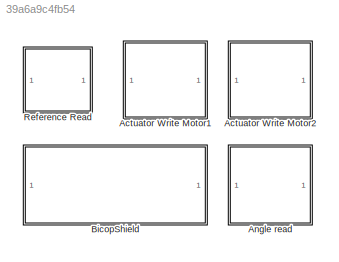
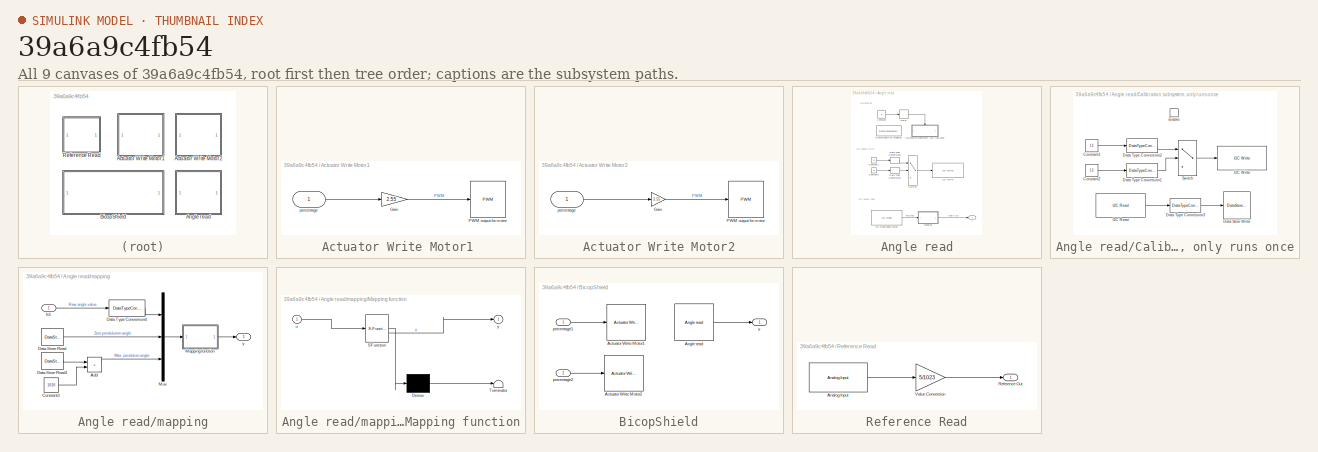
[diagram: thumbnail index - all 9 canvases of the model, root first then tree order]
MODEL slx_39a6a9c4fb54
KIND library
CONFIG AbsTol = auto
CONFIG EnableMultiTasking = off
CONFIG FixedStep = auto
CONFIG MaxStep = auto
CONFIG MinStep = auto
CONFIG RelTol = 1e-3
CONFIG SampleTimeConstraint = Unconstrained
CONFIG SolverName = VariableStepAuto
CONFIG StartTime = 0.0
CONFIG StopTime = 10.0
BLOCK [SubSystem] Actuator Write Motor1 
  AncestorBlock = BiCopLibrary/AeroShield/Actuator write
  LibrarySourceBlock = BiCopLibrary/AeroShield/Actuator write
BLOCK [Gain] Actuator Write Motor1 /Gain
  Gain = 2.55
BLOCK [Reference] Actuator Write Motor1 /PWM output for motor   REF=arduinolib/PWM
  SourceBlock = arduinolib/PWM
  SourceType = Arduino PWM
BLOCK [Inport] Actuator Write Motor1 /percentage
BLOCK [SubSystem] Actuator Write Motor2
  AncestorBlock = BiCopLibrary/Actuator Write
  LibrarySourceBlock = BiCopLibrary/Actuator Write
BLOCK [Gain] Actuator Write Motor2/Gain
  Gain = 2.55
BLOCK [Reference] Actuator Write Motor2/PWM output for motor   REF=arduinolib/PWM
  SourceBlock = arduinolib/PWM
  SourceType = Arduino PWM
BLOCK [Inport] Actuator Write Motor2/percentage
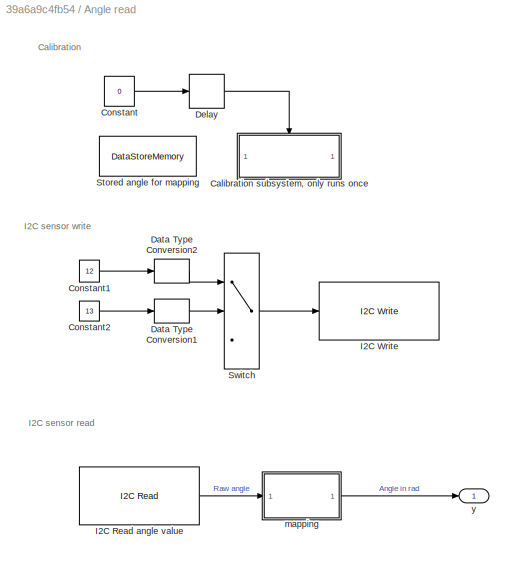
BLOCK [SubSystem] Angle read
  AncestorBlock = AeroLibrary/Angle read
  LibrarySourceBlock = AeroLibrary/Angle read
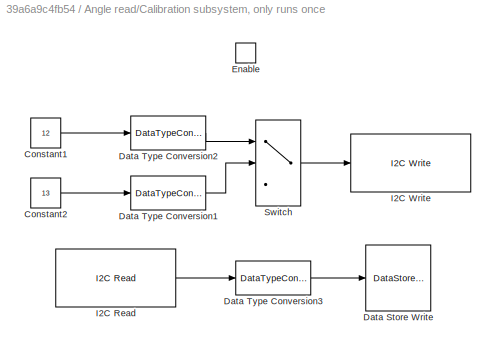
BLOCK [SubSystem] Angle read/Calibration subsystem, only runs once
  TreatAsAtomicUnit = on
BLOCK [Constant] Angle read/Calibration subsystem, only runs once/Constant1
  Value = 12
BLOCK [Constant] Angle read/Calibration subsystem, only runs once/Constant2
  Value = 13
BLOCK [DataStoreWrite] Angle read/Calibration subsystem, only runs once/Data Store Write
  DataStoreName = StartAngle
  IndexOptions = Index vector (dialog)
  Indices = 1
  OutputSizes = 1
BLOCK [DataTypeConversion] Angle read/Calibration subsystem, only runs once/Data Type Conversion1
  OutDataTypeStr = uint8
  RndMeth = Floor
  SaturateOnIntegerOverflow = off
BLOCK [DataTypeConversion] Angle read/Calibration subsystem, only runs once/Data Type Conversion2
  OutDataTypeStr = uint8
  RndMeth = Floor
  SaturateOnIntegerOverflow = off
BLOCK [DataTypeConversion] Angle read/Calibration subsystem, only runs once/Data Type Conversion3
  RndMeth = Floor
  SaturateOnIntegerOverflow = off
BLOCK [EnablePort] Angle read/Calibration subsystem, only runs once/Enable
BLOCK [Reference] Angle read/Calibration subsystem, only runs once/I2C Read  REF=arduinolib/I2C Read
  SourceBlock = arduinolib/I2C Read
  SourceType = I2C Read
BLOCK [Reference] Angle read/Calibration subsystem, only runs once/I2C Write  REF=arduinolib/I2C Write
  SourceBlock = arduinolib/I2C Write
  SourceType = I2C Write
BLOCK [Switch] Angle read/Calibration subsystem, only runs once/Switch
  Criteria = u2 > Threshold
  InputSameDT = off
  SaturateOnIntegerOverflow = off
BLOCK [Constant] Angle read/Constant
  Value = 0
BLOCK [Constant] Angle read/Constant1
  Value = 12
BLOCK [Constant] Angle read/Constant2
  Value = 13
BLOCK [DataTypeConversion] Angle read/Data Type Conversion1
  OutDataTypeStr = uint8
  RndMeth = Floor
  SaturateOnIntegerOverflow = off
BLOCK [DataTypeConversion] Angle read/Data Type Conversion2
  OutDataTypeStr = uint8
  RndMeth = Floor
  SaturateOnIntegerOverflow = off
BLOCK [Delay] Angle read/Delay
  DelayLength = 1
  InitialCondition = 1
  InputPortMap = u0
BLOCK [Reference] Angle read/I2C Read angle value  REF=arduinolib/I2C Read
  SourceBlock = arduinolib/I2C Read
  SourceType = I2C Read
BLOCK [Reference] Angle read/I2C Write  REF=arduinolib/I2C Write
  SourceBlock = arduinolib/I2C Write
  SourceType = I2C Write
BLOCK [DataStoreMemory] Angle read/Stored angle for mapping
  DataStoreName = StartAngle
  ReadBeforeWriteMsg = warning
  ShowAdditionalParam = off
  WriteAfterReadMsg = warning
  WriteAfterWriteMsg = warning
BLOCK [Switch] Angle read/Switch
  Criteria = u2 > Threshold
  InputSameDT = off
  SaturateOnIntegerOverflow = off
BLOCK [SubSystem] Angle read/mapping
BLOCK [Sum] Angle read/mapping/Add
  IconShape = rectangular
BLOCK [Constant] Angle read/mapping/Constant3
  Value = 1010
BLOCK [DataStoreRead] Angle read/mapping/Data Store Read
  DataStoreName = StartAngle
  IndexOptions = Index vector (dialog)
  Indices = 1
  OutputSizes = 1
BLOCK [DataStoreRead] Angle read/mapping/Data Store Read1
  DataStoreName = StartAngle
  IndexOptions = Index vector (dialog)
  Indices = 1
  OutputSizes = 1
BLOCK [DataTypeConversion] Angle read/mapping/Data Type Conversion4
  RndMeth = Floor
  SaturateOnIntegerOverflow = off
BLOCK [Inport] Angle read/mapping/In1
BLOCK [SubSystem] Angle read/mapping/Mapping function
  ErrorFcn = Stateflow.Translate.translate
  PermitHierarchicalResolution = ExplicitOnly
  SFBlockType = MATLAB Function
  TreatAsAtomicUnit = on
BLOCK [Demux] Angle read/mapping/Mapping function/ Demux 
  Outputs = 1
BLOCK [S-Function] Angle read/mapping/Mapping function/ SFunction 
  EnableBusSupport = on
  FunctionName = sf_sfun
  PortCounts = [1 2]
  SFcnIsStateOwnerBlock = off
  SFunctionDeploymentMode = off
  Tag = Stateflow S-Function 1
BLOCK [Terminator] Angle read/mapping/Mapping function/ Terminator 
BLOCK [Inport] Angle read/mapping/Mapping function/u
BLOCK [Outport] Angle read/mapping/Mapping function/y
BLOCK [Mux] Angle read/mapping/Mux
  DisplayOption = bar
  Inputs = 3
BLOCK [Outport] Angle read/mapping/y
BLOCK [Outport] Angle read/y
BLOCK [SubSystem] BicopShield
BLOCK [Reference] BicopShield/Actuator Write Motor1   REF=$bdroot/Actuator Write Motor1 
  LibrarySourceBlock = BiCopLibrary/AeroShield/Actuator write
  SourceBlock = $bdroot/Actuator Write Motor1
BLOCK [Reference] BicopShield/Actuator Write Motor2  REF=$bdroot/Actuator Write Motor2
  LibrarySourceBlock = BiCopLibrary/Actuator Write
  SourceBlock = $bdroot/Actuator Write Motor2
BLOCK [Reference] BicopShield/Angle read  REF=$bdroot/Angle read
  LibrarySourceBlock = AeroLibrary/Angle read
  SourceBlock = $bdroot/Angle read
BLOCK [Inport] BicopShield/percentage1
BLOCK [Inport] BicopShield/percentage2
  Port = 2
BLOCK [Outport] BicopShield/y
BLOCK [SubSystem] Reference Read
  AncestorBlock = MotoLibrary/Reference Read
  LibrarySourceBlock = MotoLibrary/Reference Read
BLOCK [Reference] Reference Read/Analog Input  REF=arduinolib/Analog Input
  SourceBlock = arduinolib/Analog Input
  SourceType = Arduino Analog Input
BLOCK [Outport] Reference Read/Reference Out
BLOCK [Gain] Reference Read/Value Conversion
  Gain = 5/1023
ANNOTATION Angle read: Calibration
ANNOTATION Angle read: I2C sensor read
ANNOTATION Angle read: I2C sensor write
LINE BicopShield/Angle read:1 -> BicopShield/y:1
LINE BicopShield/percentage1:1 -> BicopShield/Actuator Write Motor1 :1
LINE BicopShield/percentage2:1 -> BicopShield/Actuator Write Motor2:1
CHART Angle read/mapping/Mapping function states=1 transitions=1
  STATE_LABEL 'eML_blk_kernel()'
  STATE_LABEL 'SCRIPT:\nfunction y = fcn(u)\nangMin=0;\nangMax=1.55;\ny = ((u(1) - u(2)) * (angMax - angMin)) / (u(3) - u(2)) + angMin ;\n'
CHART  states=0 transitions=0
